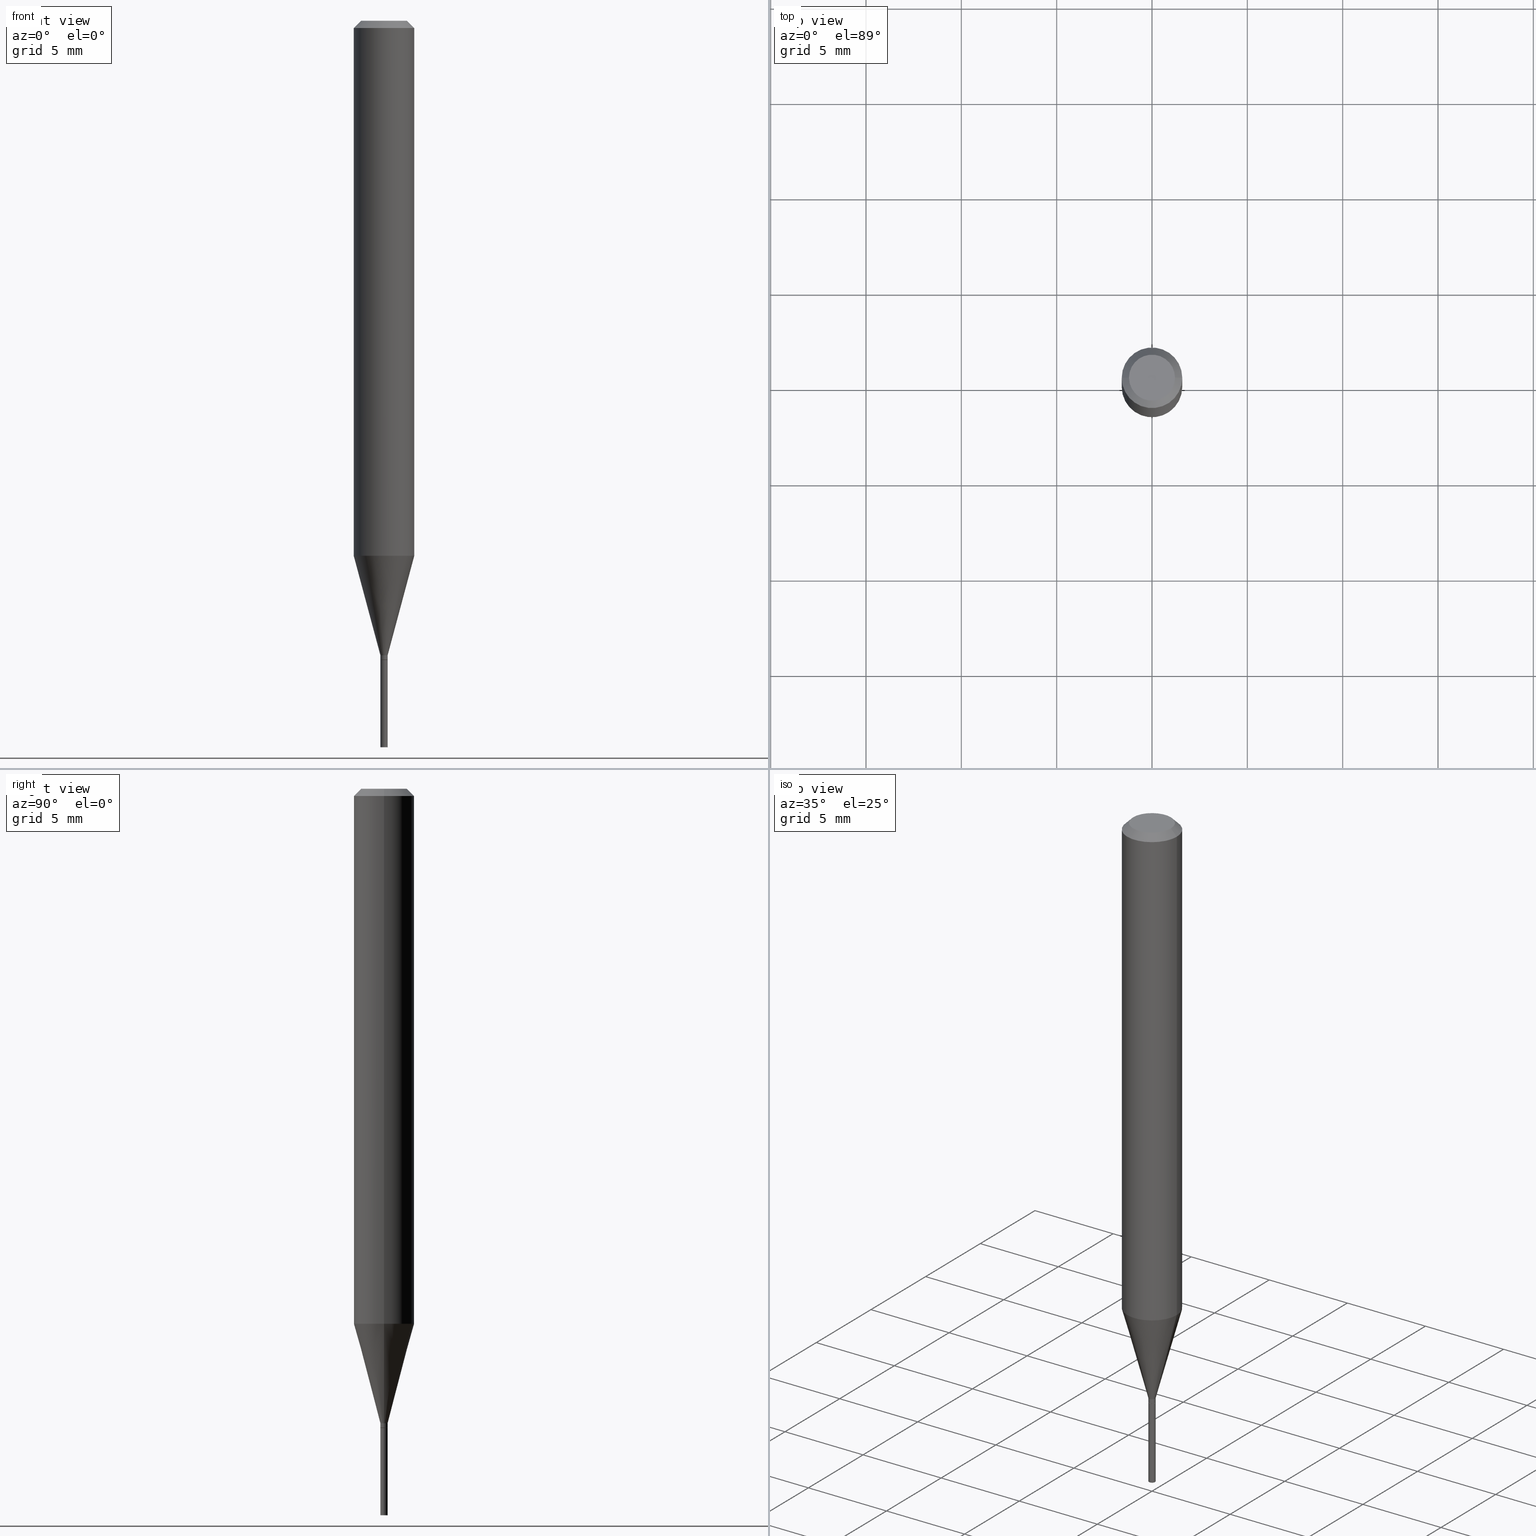
[diagram: canonical four-view strip — front | top / right | iso, engineering-drawing reading convention]
A machine part, canonical four-view strip (front | top / right | iso — engineering-drawing reading convention). The complete STEP part file that produces these views, byte-faithful:
ISO-10303-21;
HEADER;
FILE_DESCRIPTION (( 'STEP AP203' ),
    '1' );
FILE_NAME ('04239.STEP',
    '2024-03-14T17:27:44',
    ( '' ),
    ( '' ),
    'SwSTEP 2.0',
    'SolidWorks 2023',
    '' );
FILE_SCHEMA (( 'CONFIG_CONTROL_DESIGN' ));
ENDSEC;

DATA;
#1 = CARTESIAN_POINT ( 'NONE',  ( 0.000000000000000000, 0.000000000000000000, 0.000000000000000000 ) ) ;
#2 = ORIENTED_EDGE ( 'NONE', *, *, #153, .F. ) ;
#3 = AXIS2_PLACEMENT_3D ( 'NONE', #238, #19, #305 ) ;
#4 = VECTOR ( 'NONE', #116, 39.37007874015748143 ) ;
#5 = DIRECTION ( 'NONE',  ( 1.000000000000000000, -6.982962677686210701E-15, 0.000000000000000000 ) ) ;
#6 = ORIENTED_EDGE ( 'NONE', *, *, #282, .T. ) ;
#7 = CC_DESIGN_DATE_AND_TIME_ASSIGNMENT ( #284, #456, ( #242 ) ) ;
#8 = EDGE_LOOP ( 'NONE', ( #57, #152, #368, #440 ) ) ;
#9 = EDGE_CURVE ( 'NONE', #188, #250, #122, .T. ) ;
#10 = CARTESIAN_POINT ( 'NONE',  ( 0.04749999999999999362, -4.035134999187590949E-16, -7.359664656873688728E-16 ) ) ;
#11 = ORIENTED_EDGE ( 'NONE', *, *, #345, .T. ) ;
#12 = ORIENTED_EDGE ( 'NONE', *, *, #224, .F. ) ;
#13 = CARTESIAN_POINT ( 'NONE',  ( 1.799783034236790585E-44, -2.569613180961801607E-30, -7.359664656873714366E-16 ) ) ;
#14 = AXIS2_PLACEMENT_3D ( 'NONE', #397, #77, #325 ) ;
#15 = LOCAL_TIME ( 13, 27, 44.00000000000000000, #244 ) ;
#16 = CARTESIAN_POINT ( 'NONE',  ( -0.006999999999999999278, -4.556368148595634968E-15, -1.320000000000000062 ) ) ;
#17 = ORIENTED_EDGE ( 'NONE', *, *, #107, .T. ) ;
#18 = CARTESIAN_POINT ( 'NONE',  ( -0.06250000000000000000, 4.440892098500626162E-16, -3.074334431409316114E-30 ) ) ;
#19 = DIRECTION ( 'NONE',  ( -2.445468806185136597E-29, 3.491481338843145583E-15, 1.000000000000000000 ) ) ;
#20 = CARTESIAN_POINT ( 'NONE',  ( 3.226796089761288762E-29, -4.607009626603530934E-15, -1.319500000000000117 ) ) ;
#21 = DIRECTION ( 'NONE',  ( 1.000000000000000000, -6.982962677686266711E-15, 0.000000000000000000 ) ) ;
#22 = DIRECTION ( 'NONE',  ( -2.445468806185136597E-29, 3.491481338843145583E-15, 1.000000000000000000 ) ) ;
#23 = APPLICATION_PROTOCOL_DEFINITION ( 'international standard', 'config_control_design', 1994, #200 ) ;
#24 = AXIS2_PLACEMENT_3D ( 'NONE', #233, #380, #184 ) ;
#25 = ADVANCED_FACE ( 'NONE', ( #421 ), #271, .F. ) ;
#26 = CARTESIAN_POINT ( 'NONE',  ( 3.228018824164380442E-29, -4.608755367272952437E-15, -1.320000000000000062 ) ) ;
#27 = PERSON_AND_ORGANIZATION_ROLE ( 'design_owner' ) ;
#28 = VERTEX_POINT ( 'NONE', #454 ) ;
#29 = PERSON_AND_ORGANIZATION_ROLE ( 'classification_officer' ) ;
#30 =( CONVERSION_BASED_UNIT ( 'INCH', #374 ) LENGTH_UNIT ( ) NAMED_UNIT ( #394 ) );
#31 = PRODUCT_DEFINITION_SHAPE ( 'NONE', 'NONE',  #95 ) ;
#32 = DIRECTION ( 'NONE',  ( 1.000000000000000000, -6.982962677686213068E-15, 0.000000000000000000 ) ) ;
#33 = AXIS2_PLACEMENT_3D ( 'NONE', #178, #72, #142 ) ;
#34 = EDGE_CURVE ( 'NONE', #332, #359, #241, .T. ) ;
#35 = DIRECTION ( 'NONE',  ( -2.445468806185136597E-29, 3.491481338843145583E-15, 1.000000000000000000 ) ) ;
#36 = DIRECTION ( 'NONE',  ( 1.000000000000000000, -6.982962677686262766E-15, 0.000000000000000000 ) ) ;
#37 = CLOSED_SHELL ( 'NONE', ( #277, #245, #260, #88, #205, #424, #257, #350, #198, #427, #220, #131 ) ) ;
#38 = CONICAL_SURFACE ( 'NONE', #290, 0.007499999999999919925, 0.2617993877991501850 ) ;
#39 = APPROVAL ( #130, 'UNSPECIFIED' ) ;
#40 = CARTESIAN_POINT ( 'NONE',  ( 3.203564136102529457E-29, -4.573840553884521577E-15, -1.310000000000000275 ) ) ;
#41 = FACE_OUTER_BOUND ( 'NONE', #436, .T. ) ;
#42 = DIRECTION ( 'NONE',  ( -0.7071067811865648922, 2.468850131082438893E-15, -0.7071067811865301422 ) ) ;
#43 = EDGE_LOOP ( 'NONE', ( #371, #362, #17, #357 ) ) ;
#44 = EDGE_CURVE ( 'NONE', #302, #197, #100, .T. ) ;
#45 = PLANE ( 'NONE',  #14 ) ;
#46 = ORIENTED_EDGE ( 'NONE', *, *, #252, .F. ) ;
#47 = EDGE_CURVE ( 'NONE', #447, #414, #114, .T. ) ;
#48 = AXIS2_PLACEMENT_3D ( 'NONE', #40, #106, #288 ) ;
#49 = CC_DESIGN_APPROVAL ( #365, ( #242 ) ) ;
#50 = ORIENTED_EDGE ( 'NONE', *, *, #137, .F. ) ;
#51 = CARTESIAN_POINT ( 'NONE',  ( -0.007499999999999999722, 5.329070518200751197E-17, -3.689201317691179266E-31 ) ) ;
#52 = DIRECTION ( 'NONE',  ( 0.2588190451025214611, 1.565188264969620982E-15, 0.9659258262890679791 ) ) ;
#53 = EDGE_LOOP ( 'NONE', ( #119, #192, #2, #92 ) ) ;
#54 = DIRECTION ( 'NONE',  ( 1.000000000000000000, -6.982962677686268288E-15, 0.000000000000000000 ) ) ;
#55 = ORIENTED_EDGE ( 'NONE', *, *, #63, .F. ) ;
#56 = CIRCLE ( 'NONE', #213, 0.06250000000000000000 ) ;
#57 = ORIENTED_EDGE ( 'NONE', *, *, #345, .F. ) ;
#58 = AXIS2_PLACEMENT_3D ( 'NONE', #20, #62, #340 ) ;
#59 = CARTESIAN_POINT ( 'NONE',  ( -0.06249999999999999306, -3.413080127771193628E-15, -1.104737205583712356 ) ) ;
#60 = ORIENTED_EDGE ( 'NONE', *, *, #153, .T. ) ;
#61 = ORIENTED_EDGE ( 'NONE', *, *, #174, .T. ) ;
#62 = DIRECTION ( 'NONE',  ( -2.445468806185136597E-29, 3.491481338843145583E-15, 1.000000000000000000 ) ) ;
#63 = EDGE_CURVE ( 'NONE', #197, #302, #463, .T. ) ;
#64 = DIRECTION ( 'NONE',  ( -2.445468806185136597E-29, 3.491481338843145583E-15, 1.000000000000000000 ) ) ;
#65 = ADVANCED_FACE ( 'NONE', ( #99 ), #392, .T. ) ;
#66 = CALENDAR_DATE ( 2024, 14, 3 ) ;
#67 = CIRCLE ( 'NONE', #58, 0.007499999999999922527 ) ;
#68 = SECURITY_CLASSIFICATION_LEVEL ( 'unclassified' ) ;
#69 = COORDINATED_UNIVERSAL_TIME_OFFSET ( 5, 0, .BEHIND. ) ;
#70 = PERSON_AND_ORGANIZATION ( #111, #187 ) ;
#71 = CLOSED_SHELL ( 'NONE', ( #65, #25, #425, #438 ) ) ;
#72 = DIRECTION ( 'NONE',  ( -2.445468806185136597E-29, 3.491481338843145583E-15, 1.000000000000000000 ) ) ;
#73 = CARTESIAN_POINT ( 'NONE',  ( -0.007499999999999919925, -4.520549848702515199E-15, -1.310000000000000275 ) ) ;
#74 = CC_DESIGN_PERSON_AND_ORGANIZATION_ASSIGNMENT ( #70, #171, ( #95 ) ) ;
#75 = ORIENTED_EDGE ( 'NONE', *, *, #107, .F. ) ;
#76 = LINE ( 'NONE', #109, #165 ) ;
#77 = DIRECTION ( 'NONE',  ( 2.438088387897960049E-29, -3.491481338843145188E-15, -1.000000000000000000 ) ) ;
#78 = ORIENTED_EDGE ( 'NONE', *, *, #309, .T. ) ;
#79 = CARTESIAN_POINT ( 'NONE',  ( -0.04749999999999999362, 3.578768372314198180E-16, -7.359664656873739018E-16 ) ) ;
#80 = ORIENTED_EDGE ( 'NONE', *, *, #124, .F. ) ;
#81 = EDGE_CURVE ( 'NONE', #222, #314, #347, .T. ) ;
#82 = CARTESIAN_POINT ( 'NONE',  ( 0.06249999999999999306, -4.293604504976646730E-15, -1.104737205583712356 ) ) ;
#83 = CIRCLE ( 'NONE', #348, 0.06250000000000000000 ) ;
#84 = ORIENTED_EDGE ( 'NONE', *, *, #98, .F. ) ;
#85 = CARTESIAN_POINT ( 'NONE',  ( 0.000000000000000000, 0.000000000000000000, 0.000000000000000000 ) ) ;
#86 = EDGE_LOOP ( 'NONE', ( #159, #97, #310, #403 ) ) ;
#87 = ORIENTED_EDGE ( 'NONE', *, *, #129, .F. ) ;
#88 = ADVANCED_FACE ( 'NONE', ( #455 ), #168, .T. ) ;
#89 = CARTESIAN_POINT ( 'NONE',  ( -0.06250000000000000000, -1.510681569001888651E-15, -0.01499999999999999944 ) ) ;
#90 = DIRECTION ( 'NONE',  ( 2.438088387897960049E-29, -3.491481338843145188E-15, -1.000000000000000000 ) ) ;
#91 = CIRCLE ( 'NONE', #442, 0.007499999999999922527 ) ;
#92 = ORIENTED_EDGE ( 'NONE', *, *, #343, .F. ) ;
#93 =( LENGTH_UNIT ( ) NAMED_UNIT ( * ) SI_UNIT ( $, .METRE. ) );
#94 = DIRECTION ( 'NONE',  ( -2.438088387897960049E-29, 3.491481338843145188E-15, 1.000000000000000000 ) ) ;
#95 = PRODUCT_DEFINITION ( 'UNKNOWN', '', #264, #157 ) ;
#96 = CARTESIAN_POINT ( 'NONE',  ( -0.007499999999999919925, -3.966814988236853427E-15, -1.310000000000000275 ) ) ;
#97 = ORIENTED_EDGE ( 'NONE', *, *, #390, .T. ) ;
#98 = EDGE_CURVE ( 'NONE', #225, #410, #263, .T. ) ;
#99 = FACE_OUTER_BOUND ( 'NONE', #234, .T. ) ;
#100 = CIRCLE ( 'NONE', #457, 0.006999999999999999278 ) ;
#101 = PERSON_AND_ORGANIZATION ( #111, #187 ) ;
#102 = APPROVAL_DATE_TIME ( #133, #39 ) ;
#103 = CC_DESIGN_PERSON_AND_ORGANIZATION_ASSIGNMENT ( #418, #379, ( #264 ) ) ;
#104 = LINE ( 'NONE', #448, #280 ) ;
#105 = APPROVAL_DATE_TIME ( #417, #388 ) ;
#106 = DIRECTION ( 'NONE',  ( -2.445468806185136597E-29, 3.491481338843145583E-15, 1.000000000000000000 ) ) ;
#107 = EDGE_CURVE ( 'NONE', #414, #359, #104, .T. ) ;
#108 = ORIENTED_EDGE ( 'NONE', *, *, #174, .F. ) ;
#109 = CARTESIAN_POINT ( 'NONE',  ( 0.006999999999999999278, -4.657636106016756904E-15, -1.320000000000000062 ) ) ;
#110 = LINE ( 'NONE', #251, #316 ) ;
#111 = PERSON ( 'UNSPECIFIED', 'UNSPECIFIED', 'UNSPECIFIED', ('UNSPECIFIED'), ('UNSPECIFIED'), ('UNSPECIFIED') ) ;
#112 = FACE_OUTER_BOUND ( 'NONE', #43, .T. ) ;
#113 = ORIENTED_EDGE ( 'NONE', *, *, #461, .T. ) ;
#114 = CIRCLE ( 'NONE', #172, 0.06250000000000000000 ) ;
#115 = VERTEX_POINT ( 'NONE', #96 ) ;
#116 = DIRECTION ( 'NONE',  ( -2.445468806185136877E-29, 3.491481338843145188E-15, 1.000000000000000000 ) ) ;
#117 = ORIENTED_EDGE ( 'NONE', *, *, #309, .F. ) ;
#118 = CARTESIAN_POINT ( 'NONE',  ( 0.06250000000000000000, -4.888073874380388472E-16, -0.01499999999999999944 ) ) ;
#119 = ORIENTED_EDGE ( 'NONE', *, *, #140, .T. ) ;
#120 = LINE ( 'NONE', #446, #148 ) ;
#121 = ORIENTED_EDGE ( 'NONE', *, *, #129, .T. ) ;
#122 = CIRCLE ( 'NONE', #3, 0.007499999999999999722 ) ;
#123 = CIRCLE ( 'NONE', #378, 0.007499999999999999722 ) ;
#124 = EDGE_CURVE ( 'NONE', #359, #332, #56, .T. ) ;
#125 = PLANE ( 'NONE',  #404 ) ;
#126 = CARTESIAN_POINT ( 'NONE',  ( -0.007499999999999999722, -4.869697982586827746E-15, -1.500000000000000222 ) ) ;
#127 = CARTESIAN_POINT ( 'NONE',  ( 3.228018824164380442E-29, -4.608755367272952437E-15, -1.320000000000000062 ) ) ;
#128 = CONICAL_SURFACE ( 'NONE', #386, 0.06250000000000000000, 0.7853981633974729260 ) ;
#129 = EDGE_CURVE ( 'NONE', #115, #28, #202, .T. ) ;
#130 = APPROVAL_STATUS ( 'not_yet_approved' ) ;
#131 = ADVANCED_FACE ( 'NONE', ( #41 ), #366, .T. ) ;
#132 = PERSON_AND_ORGANIZATION ( #111, #187 ) ;
#133 = DATE_AND_TIME ( #453, #317 ) ;
#134 = DIRECTION ( 'NONE',  ( 1.000000000000000000, -6.982962677686333764E-15, 0.000000000000000000 ) ) ;
#135 = APPROVAL_ROLE ( '' ) ;
#136 =( GEOMETRIC_REPRESENTATION_CONTEXT ( 3 ) GLOBAL_UNCERTAINTY_ASSIGNED_CONTEXT ( ( #326 ) ) GLOBAL_UNIT_ASSIGNED_CONTEXT ( ( #30, #415, #163 ) ) REPRESENTATION_CONTEXT ( 'NONE', 'WORKASPACE' ) );
#137 = EDGE_CURVE ( 'NONE', #225, #188, #389, .T. ) ;
#138 = CARTESIAN_POINT ( 'NONE',  ( 3.668203209277704895E-29, -5.237222008264718177E-15, -1.500000000000000222 ) ) ;
#139 = SHAPE_DEFINITION_REPRESENTATION ( #31, #303 ) ;
#140 = EDGE_CURVE ( 'NONE', #28, #115, #370, .T. ) ;
#141 = CONICAL_SURFACE ( 'NONE', #395, 0.006999999999999999278, 0.7853981633974718157 ) ;
#142 = DIRECTION ( 'NONE',  ( 1.000000000000000000, -6.982962677686333764E-15, 0.000000000000000000 ) ) ;
#143 = DIRECTION ( 'NONE',  ( -2.445468806185136597E-29, 3.491481338843145583E-15, 1.000000000000000000 ) ) ;
#144 = DIRECTION ( 'NONE',  ( -2.445468806185136597E-29, 3.491481338843145583E-15, 1.000000000000000000 ) ) ;
#145 = LINE ( 'NONE', #431, #246 ) ;
#146 = DIRECTION ( 'NONE',  ( -2.445468806185136597E-29, 3.491481338843145583E-15, 1.000000000000000000 ) ) ;
#147 = ORIENTED_EDGE ( 'NONE', *, *, #381, .T. ) ;
#148 = VECTOR ( 'NONE', #333, 39.37007874015748143 ) ;
#149 = CARTESIAN_POINT ( 'NONE',  ( 0.007499999999999999722, -4.661127587355599122E-15, -1.320000000000000062 ) ) ;
#150 = ORIENTED_EDGE ( 'NONE', *, *, #63, .T. ) ;
#151 = DIRECTION ( 'NONE',  ( -1.000000000000000000, 6.982962677686266711E-15, 0.000000000000000000 ) ) ;
#152 = ORIENTED_EDGE ( 'NONE', *, *, #252, .T. ) ;
#153 = EDGE_CURVE ( 'NONE', #414, #447, #83, .T. ) ;
#154 = DIRECTION ( 'NONE',  ( 1.000000000000000000, -6.982962677686267499E-15, 4.876176775795936353E-29 ) ) ;
#155 = AXIS2_PLACEMENT_3D ( 'NONE', #138, #283, #422 ) ;
#156 = ORIENTED_EDGE ( 'NONE', *, *, #47, .F. ) ;
#157 = DESIGN_CONTEXT ( 'detailed design', #419, 'design' ) ;
#158 = LINE ( 'NONE', #401, #209 ) ;
#159 = ORIENTED_EDGE ( 'NONE', *, *, #336, .F. ) ;
#160 = FACE_OUTER_BOUND ( 'NONE', #328, .T. ) ;
#161 = EDGE_CURVE ( 'NONE', #406, #217, #91, .T. ) ;
#162 = DIRECTION ( 'NONE',  ( -2.445468806185136597E-29, 3.491481338843145583E-15, 1.000000000000000000 ) ) ;
#163 =( NAMED_UNIT ( * ) SI_UNIT ( $, .STERADIAN. ) SOLID_ANGLE_UNIT ( ) );
#164 = CARTESIAN_POINT ( 'NONE',  ( 3.228018824164380442E-29, -4.608755367272952437E-15, -1.320000000000000062 ) ) ;
#165 = VECTOR ( 'NONE', #216, 39.37007874015748143 ) ;
#166 = DIRECTION ( 'NONE',  ( 1.000000000000000000, -6.982962677686266711E-15, 0.000000000000000000 ) ) ;
#167 = DIRECTION ( 'NONE',  ( -2.445468806185136597E-29, 3.491481338843145583E-15, 1.000000000000000000 ) ) ;
#168 = CYLINDRICAL_SURFACE ( 'NONE', #223, 0.06250000000000000000 ) ;
#169 = DIRECTION ( 'NONE',  ( 0.000000000000000000, 0.000000000000000000, 1.000000000000000000 ) ) ;
#170 = DIRECTION ( 'NONE',  ( -2.445468806185136597E-29, 3.491481338843145583E-15, 1.000000000000000000 ) ) ;
#171 = PERSON_AND_ORGANIZATION_ROLE ( 'creator' ) ;
#172 = AXIS2_PLACEMENT_3D ( 'NONE', #307, #64, #201 ) ;
#173 = PERSON_AND_ORGANIZATION_ROLE ( 'design_supplier' ) ;
#174 = EDGE_CURVE ( 'NONE', #406, #28, #110, .T. ) ;
#175 = CARTESIAN_POINT ( 'NONE',  ( 0.006999999999999999278, -4.657636106016756904E-15, -1.320000000000000062 ) ) ;
#176 = AXIS2_PLACEMENT_3D ( 'NONE', #26, #167, #311 ) ;
#177 = LOCAL_TIME ( 13, 27, 44.00000000000000000, #449 ) ;
#178 = CARTESIAN_POINT ( 'NONE',  ( 3.228018824164380442E-29, -4.608755367272952437E-15, -1.320000000000000062 ) ) ;
#179 = CARTESIAN_POINT ( 'NONE',  ( 0.000000000000000000, 0.000000000000000000, 0.000000000000000000 ) ) ;
#180 = CARTESIAN_POINT ( 'NONE',  ( 3.228018824164380442E-29, -4.608755367272952437E-15, -1.320000000000000062 ) ) ;
#181 = CC_DESIGN_PERSON_AND_ORGANIZATION_ASSIGNMENT ( #207, #29, ( #242 ) ) ;
#182 = FACE_OUTER_BOUND ( 'NONE', #259, .T. ) ;
#183 = ORIENTED_EDGE ( 'NONE', *, *, #161, .T. ) ;
#184 = DIRECTION ( 'NONE',  ( 1.000000000000000000, -6.982962677686267499E-15, 4.876176775795935793E-29 ) ) ;
#185 = ORIENTED_EDGE ( 'NONE', *, *, #343, .T. ) ;
#186 = CIRCLE ( 'NONE', #306, 0.007499999999999999722 ) ;
#187 = ORGANIZATION ( 'UNSPECIFIED', 'UNSPECIFIED', '' ) ;
#188 = VERTEX_POINT ( 'NONE', #149 ) ;
#189 = FACE_OUTER_BOUND ( 'NONE', #398, .T. ) ;
#190 = DIRECTION ( 'NONE',  ( -2.445468806185136597E-29, 3.491481338843145583E-15, 1.000000000000000000 ) ) ;
#191 = FACE_OUTER_BOUND ( 'NONE', #335, .T. ) ;
#192 = ORIENTED_EDGE ( 'NONE', *, *, #240, .T. ) ;
#193 = CONICAL_SURFACE ( 'NONE', #322, 0.06250000000000000000, 0.7853981633974729260 ) ;
#194 = ORIENTED_EDGE ( 'NONE', *, *, #44, .T. ) ;
#195 = ORIENTED_EDGE ( 'NONE', *, *, #34, .T. ) ;
#196 = CARTESIAN_POINT ( 'NONE',  ( -0.007499999999999920793, 5.329070518200695114E-17, -3.689201317691140293E-31 ) ) ;
#197 = VERTEX_POINT ( 'NONE', #175 ) ;
#198 = ADVANCED_FACE ( 'NONE', ( #462 ), #45, .F. ) ;
#199 = ORIENTED_EDGE ( 'NONE', *, *, #275, .T. ) ;
#200 = APPLICATION_CONTEXT ( 'configuration controlled 3d designs of mechanical parts and assemblies' ) ;
#201 = DIRECTION ( 'NONE',  ( 1.000000000000000000, -6.982962677686262766E-15, 0.000000000000000000 ) ) ;
#202 = CIRCLE ( 'NONE', #285, 0.007499999999999919925 ) ;
#203 = AXIS2_PLACEMENT_3D ( 'NONE', #266, #90, #369 ) ;
#204 = DATE_TIME_ROLE ( 'creation_date' ) ;
#205 = ADVANCED_FACE ( 'NONE', ( #255 ), #38, .T. ) ;
#206 = CARTESIAN_POINT ( 'NONE',  ( 1.799783034236790585E-44, -2.569613180961801607E-30, -7.359664656873714366E-16 ) ) ;
#207 = PERSON_AND_ORGANIZATION ( #111, #187 ) ;
#208 = CALENDAR_DATE ( 2024, 14, 3 ) ;
#209 = VECTOR ( 'NONE', #52, 39.37007874015748143 ) ;
#210 = PERSON_AND_ORGANIZATION ( #111, #187 ) ;
#211 = CARTESIAN_POINT ( 'NONE',  ( 0.007499999999999999722, -5.289594228347365650E-15, -1.500000000000000222 ) ) ;
#212 = CARTESIAN_POINT ( 'NONE',  ( 0.000000000000000000, 0.000000000000000000, 0.000000000000000000 ) ) ;
#213 = AXIS2_PLACEMENT_3D ( 'NONE', #237, #22, #166 ) ;
#214 = ORIENTED_EDGE ( 'NONE', *, *, #98, .T. ) ;
#215 = CARTESIAN_POINT ( 'NONE',  ( 2.701600375287104490E-29, -3.857169337621255061E-15, -1.104737205583712356 ) ) ;
#216 = DIRECTION ( 'NONE',  ( 0.7071067811865642261, -2.468850131082431399E-15, 0.7071067811865309194 ) ) ;
#217 = VERTEX_POINT ( 'NONE', #435 ) ;
#218 = DIRECTION ( 'NONE',  ( -1.000000000000000000, 6.982962677686266711E-15, 0.000000000000000000 ) ) ;
#219 = ORIENTED_EDGE ( 'NONE', *, *, #140, .F. ) ;
#220 = ADVANCED_FACE ( 'NONE', ( #426 ), #420, .T. ) ;
#221 = FACE_OUTER_BOUND ( 'NONE', #296, .T. ) ;
#222 = VERTEX_POINT ( 'NONE', #79 ) ;
#223 = AXIS2_PLACEMENT_3D ( 'NONE', #459, #162, #452 ) ;
#224 = EDGE_CURVE ( 'NONE', #197, #406, #76, .T. ) ;
#225 = VERTEX_POINT ( 'NONE', #211 ) ;
#226 = DIRECTION ( 'NONE',  ( -2.445468806185136597E-29, 3.491481338843145583E-15, 1.000000000000000000 ) ) ;
#227 = ORIENTED_EDGE ( 'NONE', *, *, #161, .F. ) ;
#228 = ORIENTED_EDGE ( 'NONE', *, *, #282, .F. ) ;
#229 = LINE ( 'NONE', #18, #329 ) ;
#230 = ORIENTED_EDGE ( 'NONE', *, *, #81, .T. ) ;
#231 = CYLINDRICAL_SURFACE ( 'NONE', #387, 0.007499999999999999722 ) ;
#232 = AXIS2_PLACEMENT_3D ( 'NONE', #212, #143, #324 ) ;
#233 = CARTESIAN_POINT ( 'NONE',  ( 0.000000000000000000, 0.000000000000000000, 0.000000000000000000 ) ) ;
#234 = EDGE_LOOP ( 'NONE', ( #214, #268, #373, #50 ) ) ;
#235 = MANIFOLD_SOLID_BREP ( 'Body-Move/Copy2[2]', #37 ) ;
#236 = DIRECTION ( 'NONE',  ( 1.000000000000000000, -6.982962677686265922E-15, 4.876176775795935793E-29 ) ) ;
#237 = CARTESIAN_POINT ( 'NONE',  ( 3.668203209277705088E-31, -5.237222008264718399E-17, -0.01499999999999999944 ) ) ;
#238 = CARTESIAN_POINT ( 'NONE',  ( 3.228018824164380442E-29, -4.608755367272952437E-15, -1.320000000000000062 ) ) ;
#239 = DIRECTION ( 'NONE',  ( 1.000000000000000000, 0.000000000000000000, 0.000000000000000000 ) ) ;
#240 = EDGE_CURVE ( 'NONE', #115, #447, #320, .T. ) ;
#241 = CIRCLE ( 'NONE', #299, 0.06250000000000000000 ) ;
#242 = SECURITY_CLASSIFICATION ( '', '', #68 ) ;
#243 = APPROVAL_ROLE ( '' ) ;
#244 = COORDINATED_UNIVERSAL_TIME_OFFSET ( 5, 0, .BEHIND. ) ;
#245 = ADVANCED_FACE ( 'NONE', ( #355 ), #141, .T. ) ;
#246 = VECTOR ( 'NONE', #42, 39.37007874015748143 ) ;
#247 = AXIS2_PLACEMENT_3D ( 'NONE', #334, #190, #444 ) ;
#248 = DIRECTION ( 'NONE',  ( 1.000000000000000000, -6.982962677686213068E-15, 0.000000000000000000 ) ) ;
#249 = CARTESIAN_POINT ( 'NONE',  ( 0.007499999999999999722, -5.237222008264700526E-17, 3.657132581846952195E-31 ) ) ;
#250 = VERTEX_POINT ( 'NONE', #353 ) ;
#251 = CARTESIAN_POINT ( 'NONE',  ( 0.007499999999999920793, -5.237222008264645059E-17, 3.657132581846913221E-31 ) ) ;
#252 = EDGE_CURVE ( 'NONE', #314, #359, #399, .T. ) ;
#253 = AXIS2_PLACEMENT_3D ( 'NONE', #179, #144, #318 ) ;
#254 = DIRECTION ( 'NONE',  ( -0.2588190451025214611, 5.211531920934550253E-15, 0.9659258262890679791 ) ) ;
#255 = FACE_OUTER_BOUND ( 'NONE', #53, .T. ) ;
#256 = ORIENTED_EDGE ( 'NONE', *, *, #81, .F. ) ;
#257 = ADVANCED_FACE ( 'NONE', ( #112 ), #289, .T. ) ;
#258 = LINE ( 'NONE', #196, #412 ) ;
#259 = EDGE_LOOP ( 'NONE', ( #183, #78, #219, #108 ) ) ;
#260 = ADVANCED_FACE ( 'NONE', ( #356 ), #193, .T. ) ;
#261 = ORIENTED_EDGE ( 'NONE', *, *, #390, .F. ) ;
#262 = DIRECTION ( 'NONE',  ( -2.445468806185136877E-29, 3.491481338843145188E-15, 1.000000000000000000 ) ) ;
#263 = CIRCLE ( 'NONE', #155, 0.007499999999999999722 ) ;
#264 = PRODUCT_DEFINITION_FORMATION_WITH_SPECIFIED_SOURCE ( 'ANY', '', #315, .NOT_KNOWN. ) ;
#265 = CARTESIAN_POINT ( 'NONE',  ( 3.228018824164380442E-29, -4.608755367272952437E-15, -1.320000000000000062 ) ) ;
#266 = CARTESIAN_POINT ( 'NONE',  ( 5.237222008267927460E-17, 0.007499999999995391430, -1.320000000000000062 ) ) ;
#267 = CC_DESIGN_PERSON_AND_ORGANIZATION_ASSIGNMENT ( #274, #173, ( #264 ) ) ;
#268 = ORIENTED_EDGE ( 'NONE', *, *, #336, .T. ) ;
#269 = DIRECTION ( 'NONE',  ( -2.445468806185136877E-29, 3.491481338843145188E-15, 1.000000000000000000 ) ) ;
#270 = AXIS2_PLACEMENT_3D ( 'NONE', #13, #226, #409 ) ;
#271 = PLANE ( 'NONE',  #441 ) ;
#272 = LOCAL_TIME ( 13, 27, 44.00000000000000000, #69 ) ;
#273 = DIRECTION ( 'NONE',  ( -2.445468806185136877E-29, 3.491481338843145188E-15, 1.000000000000000000 ) ) ;
#274 = PERSON_AND_ORGANIZATION ( #111, #187 ) ;
#275 = EDGE_CURVE ( 'NONE', #222, #332, #145, .T. ) ;
#276 = CALENDAR_DATE ( 2024, 14, 3 ) ;
#277 = ADVANCED_FACE ( 'NONE', ( #182 ), #327, .T. ) ;
#278 = DIRECTION ( 'NONE',  ( -2.445468806185136597E-29, 3.491481338843145583E-15, 1.000000000000000000 ) ) ;
#279 = COORDINATED_UNIVERSAL_TIME_OFFSET ( 5, 0, .BEHIND. ) ;
#280 = VECTOR ( 'NONE', #273, 39.37007874015748143 ) ;
#281 = APPROVAL_PERSON_ORGANIZATION ( #384, #365, #135 ) ;
#282 = EDGE_CURVE ( 'NONE', #302, #217, #120, .T. ) ;
#283 = DIRECTION ( 'NONE',  ( -2.445468806185136597E-29, 3.491481338843145583E-15, 1.000000000000000000 ) ) ;
#284 = DATE_AND_TIME ( #313, #15 ) ;
#285 = AXIS2_PLACEMENT_3D ( 'NONE', #308, #331, #32 ) ;
#286 = DIRECTION ( 'NONE',  ( -2.445468806185136597E-29, 3.491481338843145583E-15, 1.000000000000000000 ) ) ;
#287 = PRODUCT_RELATED_PRODUCT_CATEGORY ( 'detail', '', ( #315 ) ) ;
#288 = DIRECTION ( 'NONE',  ( 1.000000000000000000, -6.982962677686213068E-15, 0.000000000000000000 ) ) ;
#289 = CYLINDRICAL_SURFACE ( 'NONE', #232, 0.06250000000000000000 ) ;
#290 = AXIS2_PLACEMENT_3D ( 'NONE', #393, #354, #248 ) ;
#291 = CC_DESIGN_APPROVAL ( #388, ( #95 ) ) ;
#292 = CARTESIAN_POINT ( 'NONE',  ( 0.06250000000000000000, -4.811533449433679005E-16, -0.01499999999999999944 ) ) ;
#293 = ORIENTED_EDGE ( 'NONE', *, *, #432, .T. ) ;
#294 = EDGE_LOOP ( 'NONE', ( #60, #147, #80, #75 ) ) ;
#295 = DIRECTION ( 'NONE',  ( -2.445468806185136597E-29, 3.491481338843145583E-15, 1.000000000000000000 ) ) ;
#296 = EDGE_LOOP ( 'NONE', ( #339, #121, #185, #156 ) ) ;
#297 = DIRECTION ( 'NONE',  ( 2.445468806185136597E-29, -3.491481338843145583E-15, -1.000000000000000000 ) ) ;
#298 = EDGE_LOOP ( 'NONE', ( #228, #194, #364, #382 ) ) ;
#299 = AXIS2_PLACEMENT_3D ( 'NONE', #375, #344, #21 ) ;
#300 = DIRECTION ( 'NONE',  ( -2.445468806185136877E-29, 3.491481338843145188E-15, 1.000000000000000000 ) ) ;
#301 = VECTOR ( 'NONE', #254, 39.37007874015748143 ) ;
#302 = VERTEX_POINT ( 'NONE', #16 ) ;
#303 = ADVANCED_BREP_SHAPE_REPRESENTATION ( '04239', ( #385, #235, #464 ), #136 ) ;
#304 = CARTESIAN_POINT ( 'NONE',  ( 0.007499999999999922527, -4.659381846686178407E-15, -1.319500000000000117 ) ) ;
#305 = DIRECTION ( 'NONE',  ( 1.000000000000000000, -6.982962677686268288E-15, 0.000000000000000000 ) ) ;
#306 = AXIS2_PLACEMENT_3D ( 'NONE', #361, #295, #367 ) ;
#307 = CARTESIAN_POINT ( 'NONE',  ( 2.701600375287104490E-29, -3.857169337621255061E-15, -1.104737205583712356 ) ) ;
#308 = CARTESIAN_POINT ( 'NONE',  ( 3.203564136102529457E-29, -4.573840553884521577E-15, -1.310000000000000275 ) ) ;
#309 = EDGE_CURVE ( 'NONE', #217, #115, #258, .T. ) ;
#310 = ORIENTED_EDGE ( 'NONE', *, *, #137, .T. ) ;
#311 = DIRECTION ( 'NONE',  ( 1.000000000000000000, -6.982962677686333764E-15, 0.000000000000000000 ) ) ;
#312 = MECHANICAL_CONTEXT ( 'NONE', #200, 'mechanical' ) ;
#313 = CALENDAR_DATE ( 2024, 14, 3 ) ;
#314 = VERTEX_POINT ( 'NONE', #10 ) ;
#315 = PRODUCT ( '04239', '04239', '', ( #312 ) ) ;
#316 = VECTOR ( 'NONE', #391, 39.37007874015748143 ) ;
#317 = LOCAL_TIME ( 13, 27, 44.00000000000000000, #423 ) ;
#318 = DIRECTION ( 'NONE',  ( 1.000000000000000000, -6.982962677686267499E-15, 4.876176775795936353E-29 ) ) ;
#319 = DATE_AND_TIME ( #208, #272 ) ;
#320 = LINE ( 'NONE', #73, #301 ) ;
#321 = CC_DESIGN_PERSON_AND_ORGANIZATION_ASSIGNMENT ( #132, #27, ( #315 ) ) ;
#322 = AXIS2_PLACEMENT_3D ( 'NONE', #466, #465, #218 ) ;
#323 = LOCAL_TIME ( 13, 27, 44.00000000000000000, #279 ) ;
#324 = DIRECTION ( 'NONE',  ( 1.000000000000000000, -6.982962677686266711E-15, 4.876176775795935793E-29 ) ) ;
#325 = DIRECTION ( 'NONE',  ( -1.000000000000000000, 6.982962677686265922E-15, -4.876176775795935793E-29 ) ) ;
#326 = UNCERTAINTY_MEASURE_WITH_UNIT (LENGTH_MEASURE( 1.000000000000000082E-05 ), #30, 'distance_accuracy_value', 'NONE');
#327 = CYLINDRICAL_SURFACE ( 'NONE', #402, 0.007499999999999920793 ) ;
#328 = EDGE_LOOP ( 'NONE', ( #55, #407 ) ) ;
#329 = VECTOR ( 'NONE', #300, 39.37007874015748143 ) ;
#330 = DIRECTION ( 'NONE',  ( -2.445468806185136597E-29, 3.491481338843145583E-15, 1.000000000000000000 ) ) ;
#331 = DIRECTION ( 'NONE',  ( -2.445468806185136597E-29, 3.491481338843145583E-15, 1.000000000000000000 ) ) ;
#332 = VERTEX_POINT ( 'NONE', #89 ) ;
#333 = DIRECTION ( 'NONE',  ( -0.7071067811865642261, 7.493145998870414114E-15, 0.7071067811865309194 ) ) ;
#334 = CARTESIAN_POINT ( 'NONE',  ( 3.203564136102529457E-29, -4.573840553884521577E-15, -1.310000000000000275 ) ) ;
#335 = EDGE_LOOP ( 'NONE', ( #433, #293 ) ) ;
#336 = EDGE_CURVE ( 'NONE', #410, #250, #342, .T. ) ;
#337 = DIRECTION ( 'NONE',  ( 1.000000000000000000, -6.982962677686267499E-15, 4.876176775795935793E-29 ) ) ;
#338 = VECTOR ( 'NONE', #269, 39.37007874015748143 ) ;
#339 = ORIENTED_EDGE ( 'NONE', *, *, #240, .F. ) ;
#340 = DIRECTION ( 'NONE',  ( 1.000000000000000000, -6.982962677686210701E-15, 0.000000000000000000 ) ) ;
#341 = EDGE_LOOP ( 'NONE', ( #84, #261 ) ) ;
#342 = LINE ( 'NONE', #51, #338 ) ;
#343 = EDGE_CURVE ( 'NONE', #28, #414, #158, .T. ) ;
#344 = DIRECTION ( 'NONE',  ( -2.445468806185136597E-29, 3.491481338843145583E-15, 1.000000000000000000 ) ) ;
#345 = EDGE_CURVE ( 'NONE', #314, #222, #428, .T. ) ;
#346 = CARTESIAN_POINT ( 'NONE',  ( 0.000000000000000000, 0.000000000000000000, 0.000000000000000000 ) ) ;
#347 = CIRCLE ( 'NONE', #377, 0.04749999999999999362 ) ;
#348 = AXIS2_PLACEMENT_3D ( 'NONE', #215, #35, #36 ) ;
#349 = DATE_AND_TIME ( #66, #177 ) ;
#350 = ADVANCED_FACE ( 'NONE', ( #189 ), #128, .T. ) ;
#351 = APPROVAL_STATUS ( 'not_yet_approved' ) ;
#352 = APPROVAL_ROLE ( '' ) ;
#353 = CARTESIAN_POINT ( 'NONE',  ( -0.007499999999999999722, -4.869697982586827746E-15, -1.320000000000000062 ) ) ;
#354 = DIRECTION ( 'NONE',  ( -2.445468806185136597E-29, 3.491481338843145583E-15, 1.000000000000000000 ) ) ;
#355 = FACE_OUTER_BOUND ( 'NONE', #400, .T. ) ;
#356 = FACE_OUTER_BOUND ( 'NONE', #8, .T. ) ;
#357 = ORIENTED_EDGE ( 'NONE', *, *, #34, .F. ) ;
#358 = DIRECTION ( 'NONE',  ( 1.000000000000000000, -6.982962677686333764E-15, 0.000000000000000000 ) ) ;
#359 = VERTEX_POINT ( 'NONE', #118 ) ;
#360 = CONICAL_SURFACE ( 'NONE', #247, 0.007499999999999919925, 0.2617993877991501850 ) ;
#361 = CARTESIAN_POINT ( 'NONE',  ( 3.668203209277704895E-29, -5.237222008264718177E-15, -1.500000000000000222 ) ) ;
#362 = ORIENTED_EDGE ( 'NONE', *, *, #47, .T. ) ;
#363 = DIRECTION ( 'NONE',  ( -2.445468806185136597E-29, 3.491481338843145583E-15, 1.000000000000000000 ) ) ;
#364 = ORIENTED_EDGE ( 'NONE', *, *, #224, .T. ) ;
#365 = APPROVAL ( #383, 'UNSPECIFIED' ) ;
#366 = CYLINDRICAL_SURFACE ( 'NONE', #24, 0.007499999999999920793 ) ;
#367 = DIRECTION ( 'NONE',  ( 1.000000000000000000, -6.982962677686268288E-15, 0.000000000000000000 ) ) ;
#368 = ORIENTED_EDGE ( 'NONE', *, *, #124, .T. ) ;
#369 = DIRECTION ( 'NONE',  ( -1.000000000000000000, 6.982962677686265922E-15, -4.876176775795935793E-29 ) ) ;
#370 = CIRCLE ( 'NONE', #48, 0.007499999999999919925 ) ;
#371 = ORIENTED_EDGE ( 'NONE', *, *, #381, .F. ) ;
#372 = DIRECTION ( 'NONE',  ( -2.438088387897960049E-29, 3.491481338843145188E-15, 1.000000000000000000 ) ) ;
#373 = ORIENTED_EDGE ( 'NONE', *, *, #9, .F. ) ;
#374 = LENGTH_MEASURE_WITH_UNIT ( LENGTH_MEASURE( 0.02539999999999999897 ), #93 );
#375 = CARTESIAN_POINT ( 'NONE',  ( 3.668203209277705088E-31, -5.237222008264718399E-17, -0.01499999999999999944 ) ) ;
#376 = APPLICATION_PROTOCOL_DEFINITION ( 'international standard', 'config_control_design', 1994, #419 ) ;
#377 = AXIS2_PLACEMENT_3D ( 'NONE', #206, #278, #416 ) ;
#378 = AXIS2_PLACEMENT_3D ( 'NONE', #127, #437, #54 ) ;
#379 = PERSON_AND_ORGANIZATION_ROLE ( 'creator' ) ;
#380 = DIRECTION ( 'NONE',  ( -2.445468806185136597E-29, 3.491481338843145583E-15, 1.000000000000000000 ) ) ;
#381 = EDGE_CURVE ( 'NONE', #447, #332, #229, .T. ) ;
#382 = ORIENTED_EDGE ( 'NONE', *, *, #461, .F. ) ;
#383 = APPROVAL_STATUS ( 'not_yet_approved' ) ;
#384 = PERSON_AND_ORGANIZATION ( #111, #187 ) ;
#385 = MANIFOLD_SOLID_BREP ( 'Body-Move/Copy2[1]', #71 ) ;
#386 = AXIS2_PLACEMENT_3D ( 'NONE', #405, #297, #151 ) ;
#387 = AXIS2_PLACEMENT_3D ( 'NONE', #85, #363, #154 ) ;
#388 = APPROVAL ( #351, 'UNSPECIFIED' ) ;
#389 = LINE ( 'NONE', #249, #4 ) ;
#390 = EDGE_CURVE ( 'NONE', #410, #225, #186, .T. ) ;
#391 = DIRECTION ( 'NONE',  ( -2.445468806185136877E-29, 3.491481338843145188E-15, 1.000000000000000000 ) ) ;
#392 = CYLINDRICAL_SURFACE ( 'NONE', #253, 0.007499999999999999722 ) ;
#393 = CARTESIAN_POINT ( 'NONE',  ( 3.203564136102529457E-29, -4.573840553884521577E-15, -1.310000000000000275 ) ) ;
#394 = DIMENSIONAL_EXPONENTS ( 1.000000000000000000, 0.000000000000000000, 0.000000000000000000, 0.000000000000000000, 0.000000000000000000, 0.000000000000000000, 0.000000000000000000 ) ;
#395 = AXIS2_PLACEMENT_3D ( 'NONE', #180, #286, #358 ) ;
#396 = CC_DESIGN_SECURITY_CLASSIFICATION ( #242, ( #264 ) ) ;
#397 = CARTESIAN_POINT ( 'NONE',  ( 3.316907271900976096E-16, 0.04749999999999999362, -5.338285964387351640E-16 ) ) ;
#398 = EDGE_LOOP ( 'NONE', ( #46, #256, #199, #195 ) ) ;
#399 = LINE ( 'NONE', #292, #434 ) ;
#400 = EDGE_LOOP ( 'NONE', ( #150, #6, #227, #12 ) ) ;
#401 = CARTESIAN_POINT ( 'NONE',  ( 0.007499999999999919925, -4.626212773967167473E-15, -1.310000000000000275 ) ) ;
#402 = AXIS2_PLACEMENT_3D ( 'NONE', #1, #146, #337 ) ;
#403 = ORIENTED_EDGE ( 'NONE', *, *, #432, .F. ) ;
#404 = AXIS2_PLACEMENT_3D ( 'NONE', #265, #372, #408 ) ;
#405 = CARTESIAN_POINT ( 'NONE',  ( 3.668203209277705088E-31, -5.237222008264718399E-17, -0.01499999999999999944 ) ) ;
#406 = VERTEX_POINT ( 'NONE', #304 ) ;
#407 = ORIENTED_EDGE ( 'NONE', *, *, #44, .F. ) ;
#408 = DIRECTION ( 'NONE',  ( 1.000000000000000000, -6.982962677686265922E-15, 4.876176775795935793E-29 ) ) ;
#409 = DIRECTION ( 'NONE',  ( 1.000000000000000000, -6.982962677686267499E-15, 4.852736867747366768E-29 ) ) ;
#410 = VERTEX_POINT ( 'NONE', #126 ) ;
#411 = PLANE ( 'NONE',  #203 ) ;
#412 = VECTOR ( 'NONE', #262, 39.37007874015748143 ) ;
#413 = CARTESIAN_POINT ( 'NONE',  ( 3.576687321579069994E-29, -5.368277968210015545E-15, -1.500000000000000222 ) ) ;
#414 = VERTEX_POINT ( 'NONE', #82 ) ;
#415 =( NAMED_UNIT ( * ) PLANE_ANGLE_UNIT ( ) SI_UNIT ( $, .RADIAN. ) );
#416 = DIRECTION ( 'NONE',  ( 1.000000000000000000, -6.982962677686267499E-15, 4.852736867747366768E-29 ) ) ;
#417 = DATE_AND_TIME ( #276, #323 ) ;
#418 = PERSON_AND_ORGANIZATION ( #111, #187 ) ;
#419 = APPLICATION_CONTEXT ( 'configuration controlled 3d designs of mechanical parts and assemblies' ) ;
#420 = CONICAL_SURFACE ( 'NONE', #33, 0.006999999999999999278, 0.7853981633974718157 ) ;
#421 = FACE_OUTER_BOUND ( 'NONE', #341, .T. ) ;
#422 = DIRECTION ( 'NONE',  ( 1.000000000000000000, -6.982962677686268288E-15, 0.000000000000000000 ) ) ;
#423 = COORDINATED_UNIVERSAL_TIME_OFFSET ( 5, 0, .BEHIND. ) ;
#424 = ADVANCED_FACE ( 'NONE', ( #221 ), #360, .T. ) ;
#425 = ADVANCED_FACE ( 'NONE', ( #439 ), #231, .T. ) ;
#426 = FACE_OUTER_BOUND ( 'NONE', #298, .T. ) ;
#427 = ADVANCED_FACE ( 'NONE', ( #160 ), #125, .F. ) ;
#428 = CIRCLE ( 'NONE', #270, 0.04749999999999999362 ) ;
#429 = DIRECTION ( 'NONE',  ( 0.7071067811865648922, -7.319954787623314421E-15, -0.7071067811865301422 ) ) ;
#430 = CARTESIAN_POINT ( 'NONE',  ( 3.226796089761288762E-29, -4.607009626603530934E-15, -1.319500000000000117 ) ) ;
#431 = CARTESIAN_POINT ( 'NONE',  ( -0.06250000000000000000, 3.840629472727444916E-16, -0.01499999999999999944 ) ) ;
#432 = EDGE_CURVE ( 'NONE', #250, #188, #123, .T. ) ;
#433 = ORIENTED_EDGE ( 'NONE', *, *, #9, .T. ) ;
#434 = VECTOR ( 'NONE', #429, 39.37007874015748143 ) ;
#435 = CARTESIAN_POINT ( 'NONE',  ( -0.007499999999999922527, -4.553718921421524556E-15, -1.319500000000000117 ) ) ;
#436 = EDGE_LOOP ( 'NONE', ( #117, #113, #61, #87 ) ) ;
#437 = DIRECTION ( 'NONE',  ( -2.445468806185136597E-29, 3.491481338843145583E-15, 1.000000000000000000 ) ) ;
#438 = ADVANCED_FACE ( 'NONE', ( #191 ), #411, .F. ) ;
#439 = FACE_OUTER_BOUND ( 'NONE', #86, .T. ) ;
#440 = ORIENTED_EDGE ( 'NONE', *, *, #275, .F. ) ;
#441 = AXIS2_PLACEMENT_3D ( 'NONE', #413, #94, #236 ) ;
#442 = AXIS2_PLACEMENT_3D ( 'NONE', #430, #330, #5 ) ;
#443 = APPROVAL_PERSON_ORGANIZATION ( #210, #39, #243 ) ;
#444 = DIRECTION ( 'NONE',  ( 1.000000000000000000, -6.982962677686213068E-15, 0.000000000000000000 ) ) ;
#445 = EDGE_LOOP ( 'NONE', ( #230, #11 ) ) ;
#446 = CARTESIAN_POINT ( 'NONE',  ( -0.006999999999999999278, -4.559017375769746169E-15, -1.320000000000000062 ) ) ;
#447 = VERTEX_POINT ( 'NONE', #59 ) ;
#448 = CARTESIAN_POINT ( 'NONE',  ( 0.06250000000000000000, -4.364351673553916694E-16, 3.047610484872459871E-30 ) ) ;
#449 = COORDINATED_UNIVERSAL_TIME_OFFSET ( 5, 0, .BEHIND. ) ;
#450 = CC_DESIGN_APPROVAL ( #39, ( #264 ) ) ;
#451 = CC_DESIGN_DATE_AND_TIME_ASSIGNMENT ( #349, #204, ( #95 ) ) ;
#452 = DIRECTION ( 'NONE',  ( 1.000000000000000000, -6.982962677686266711E-15, 4.876176775795935793E-29 ) ) ;
#453 = CALENDAR_DATE ( 2024, 14, 3 ) ;
#454 = CARTESIAN_POINT ( 'NONE',  ( 0.007499999999999919925, -4.626212773967167473E-15, -1.310000000000000275 ) ) ;
#455 = FACE_OUTER_BOUND ( 'NONE', #294, .T. ) ;
#456 = DATE_TIME_ROLE ( 'classification_date' ) ;
#457 = AXIS2_PLACEMENT_3D ( 'NONE', #164, #170, #134 ) ;
#458 = APPROVAL_PERSON_ORGANIZATION ( #101, #388, #352 ) ;
#459 = CARTESIAN_POINT ( 'NONE',  ( 0.000000000000000000, 0.000000000000000000, 0.000000000000000000 ) ) ;
#460 = APPROVAL_DATE_TIME ( #319, #365 ) ;
#461 = EDGE_CURVE ( 'NONE', #217, #406, #67, .T. ) ;
#462 = FACE_OUTER_BOUND ( 'NONE', #445, .T. ) ;
#463 = CIRCLE ( 'NONE', #176, 0.006999999999999999278 ) ;
#464 = AXIS2_PLACEMENT_3D ( 'NONE', #346, #169, #239 ) ;
#465 = DIRECTION ( 'NONE',  ( 2.445468806185136597E-29, -3.491481338843145583E-15, -1.000000000000000000 ) ) ;
#466 = CARTESIAN_POINT ( 'NONE',  ( 3.668203209277705088E-31, -5.237222008264718399E-17, -0.01499999999999999944 ) ) ;
ENDSEC;
END-ISO-10303-21;
